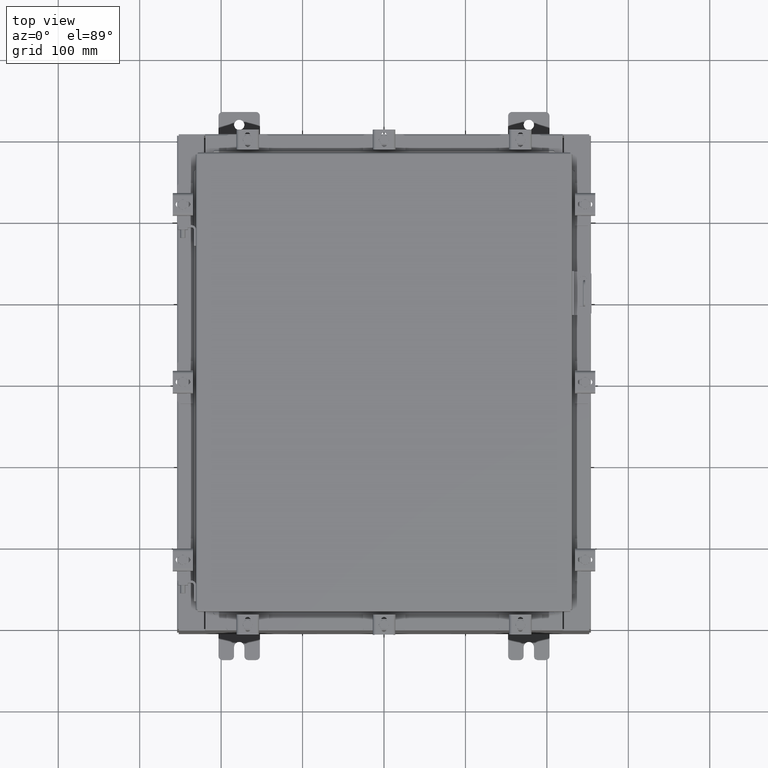
[diagram: clean part render]
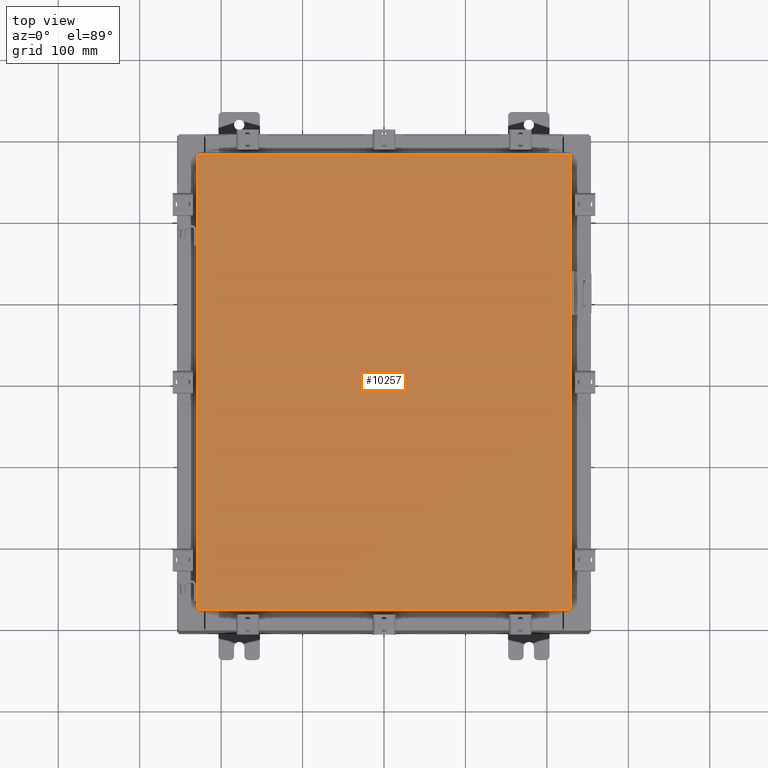
[diagram: same view with one face highlighted and labeled with its STEP entity id]
A machine part, top view. The second image highlights one B-rep face of the part: STEP entity #10257.
In plain terms, the highlighted planar face has unit normal (0, 0, -1).
Its self-contained STEP definition (entity closure, byte-faithful):
#360 = ORIENTED_EDGE ( 'NONE', *, *, #8732, .T. ) ;
#585 = CARTESIAN_POINT ( 'NONE',  ( 9.006299999999997800, -11.00629999999999600, 0.0000000000000000000 ) ) ;
#1961 = VECTOR ( 'NONE', #16142, 39.37007874015748100 ) ;
#2399 = ORIENTED_EDGE ( 'NONE', *, *, #22092, .T. ) ;
#2511 = VERTEX_POINT ( 'NONE', #19109 ) ;
#2764 = CARTESIAN_POINT ( 'NONE',  ( 0.0000000000000000000, 0.0000000000000000000, 0.0000000000000000000 ) ) ;
#4333 = AXIS2_PLACEMENT_3D ( 'NONE', #2764, #14949, #4522 ) ;
#4469 = EDGE_LOOP ( 'NONE', ( #9263, #2399, #10510, #360 ) ) ;
#4522 = DIRECTION ( 'NONE',  ( -1.000000000000000000, 0.0000000000000000000, -0.0000000000000000000 ) ) ;
#4956 = FACE_OUTER_BOUND ( 'NONE', #4469, .T. ) ;
#5544 = LINE ( 'NONE', #585, #10187 ) ;
#5952 = CARTESIAN_POINT ( 'NONE',  ( 9.006299999999997800, 11.00630000000000100, -2.185478394931410600E-015 ) ) ;
#6026 = DIRECTION ( 'NONE',  ( -1.000000000000000000, -0.0000000000000000000, -0.0000000000000000000 ) ) ;
#6996 = LINE ( 'NONE', #5952, #20369 ) ;
#8616 = EDGE_CURVE ( 'NONE', #8656, #2511, #14002, .T. ) ;
#8656 = VERTEX_POINT ( 'NONE', #9006 ) ;
#8732 = EDGE_CURVE ( 'NONE', #18266, #8656, #16422, .T. ) ;
#9006 = CARTESIAN_POINT ( 'NONE',  ( -9.006300000000001300, -11.00629999999999600, 0.0000000000000000000 ) ) ;
#9263 = ORIENTED_EDGE ( 'NONE', *, *, #8616, .T. ) ;
#10187 = VECTOR ( 'NONE', #11096, 39.37007874015748100 ) ;
#10257 = ADVANCED_FACE ( 'NONE', ( #4956 ), #11464, .F. ) ;
#10510 = ORIENTED_EDGE ( 'NONE', *, *, #13692, .T. ) ;
#11096 = DIRECTION ( 'NONE',  ( 0.0000000000000000000, 1.000000000000000000, 0.0000000000000000000 ) ) ;
#11464 = PLANE ( 'NONE',  #4333 ) ;
#12231 = CARTESIAN_POINT ( 'NONE',  ( -9.006300000000001300, 11.00630000000000100, 0.0000000000000000000 ) ) ;
#13445 = VECTOR ( 'NONE', #15783, 39.37007874015748100 ) ;
#13692 = EDGE_CURVE ( 'NONE', #22001, #18266, #6996, .T. ) ;
#14002 = LINE ( 'NONE', #14043, #13445 ) ;
#14043 = CARTESIAN_POINT ( 'NONE',  ( -9.006300000000001300, -11.00629999999999600, 0.0000000000000000000 ) ) ;
#14403 = CARTESIAN_POINT ( 'NONE',  ( -9.006300000000001300, 11.00630000000000100, 0.0000000000000000000 ) ) ;
#14949 = DIRECTION ( 'NONE',  ( 0.0000000000000000000, 0.0000000000000000000, -1.000000000000000000 ) ) ;
#15783 = DIRECTION ( 'NONE',  ( 1.000000000000000000, -0.0000000000000000000, -0.0000000000000000000 ) ) ;
#16142 = DIRECTION ( 'NONE',  ( 0.0000000000000000000, -1.000000000000000000, 0.0000000000000000000 ) ) ;
#16422 = LINE ( 'NONE', #14403, #1961 ) ;
#17863 = CARTESIAN_POINT ( 'NONE',  ( 9.006299999999997800, 11.00630000000000100, -2.185478394931410600E-015 ) ) ;
#18266 = VERTEX_POINT ( 'NONE', #12231 ) ;
#19109 = CARTESIAN_POINT ( 'NONE',  ( 9.006299999999997800, -11.00629999999999600, 0.0000000000000000000 ) ) ;
#20369 = VECTOR ( 'NONE', #6026, 39.37007874015748100 ) ;
#22001 = VERTEX_POINT ( 'NONE', #17863 ) ;
#22092 = EDGE_CURVE ( 'NONE', #2511, #22001, #5544, .T. ) ;